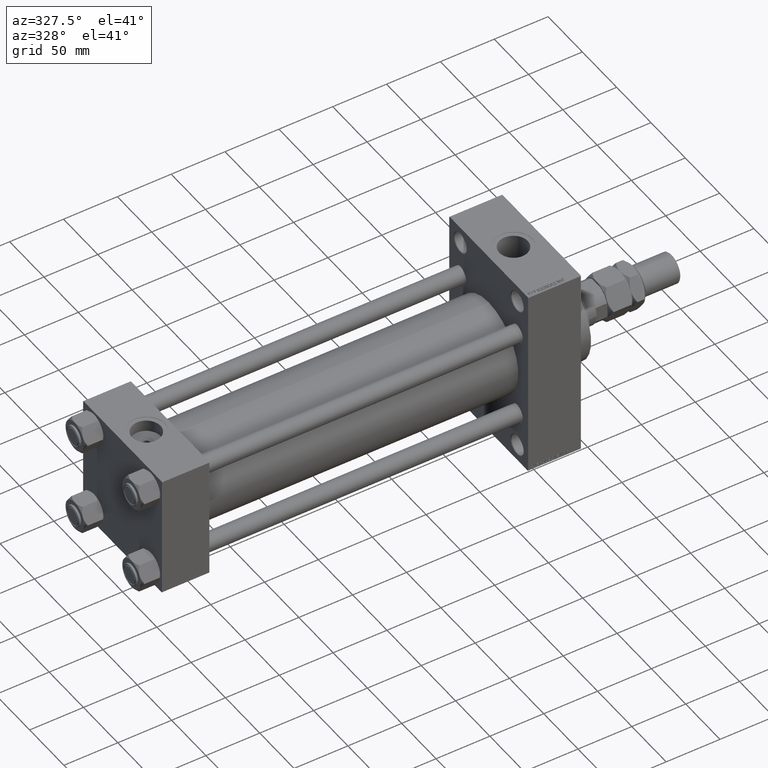
[diagram: clean part render]
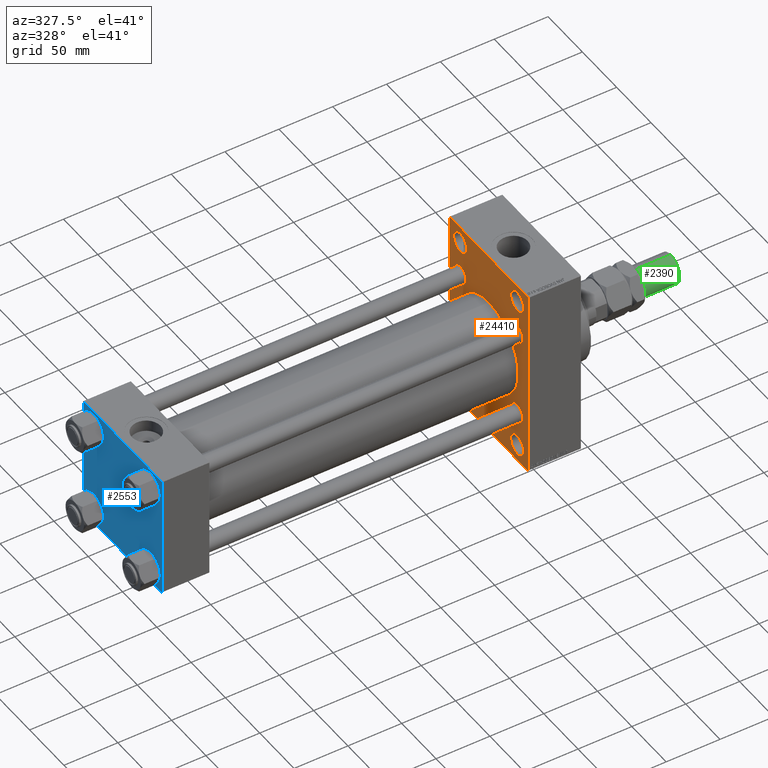
[diagram: same view with three faces highlighted in distinct colors, each labeled with its STEP entity id]
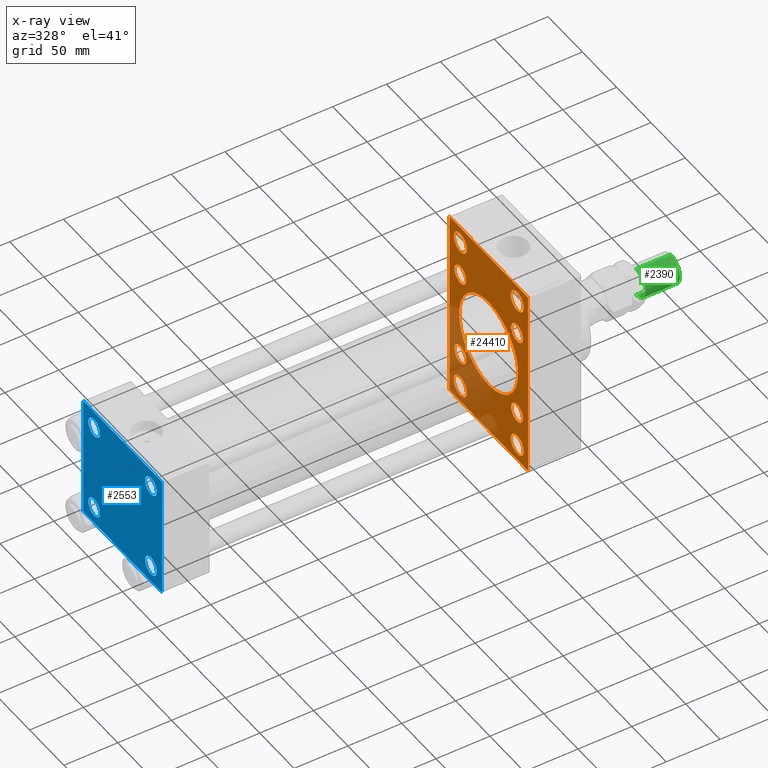
[diagram: x-ray of the same camera — body ghosted, the three highlighted faces saturated]
A machine part, auxiliary view with three faces highlighted in distinct colors.
The next image is the same camera in x-ray (body ghosted, the three faces saturated) — at least one of them is partly hidden behind the body in this view.
Their STEP definitions:

[orange] entity #24410 — the highlighted planar face has unit normal (-1, 0, 0).
#315 = ORIENTED_EDGE ( 'NONE', *, *, #41052, .T. ) ;
#408 = AXIS2_PLACEMENT_3D ( 'NONE', #17367, #4904, #33254 ) ;
#651 = VERTEX_POINT ( 'NONE', #7323 ) ;
#840 = VERTEX_POINT ( 'NONE', #1810 ) ;
#983 = CARTESIAN_POINT ( 'NONE',  ( 339.9999999999999432, -41.49999999999999289, -74.49999999999998579 ) ) ;
#1042 = CARTESIAN_POINT ( 'NONE',  ( 339.9999999999999432, -41.49999999999999289, 74.50000000000001421 ) ) ;
#1144 = EDGE_CURVE ( 'NONE', #21799, #36738, #3163, .T. ) ;
#1311 = CIRCLE ( 'NONE', #32882, 8.500000000000007105 ) ;
#1561 = CARTESIAN_POINT ( 'NONE',  ( 339.9999999999999432, -41.49999999999999289, -83.99999999999988631 ) ) ;
#1632 = EDGE_CURVE ( 'NONE', #5100, #37306, #25608, .T. ) ;
#1810 = CARTESIAN_POINT ( 'NONE',  ( 339.9999999999999432, -57.00000000000002132, -90.00000000000001421 ) ) ;
#1912 = FACE_BOUND ( 'NONE', #43462, .T. ) ;
#2055 = DIRECTION ( 'NONE',  ( 1.000000000000000000, -0.000000000000000000, 0.000000000000000000 ) ) ;
#2211 = CARTESIAN_POINT ( 'NONE',  ( 339.9999999999999432, -41.49999999999999289, 74.50000000000001421 ) ) ;
#2417 = DIRECTION ( 'NONE',  ( 0.000000000000000000, 0.7071067811865474617, -0.7071067811865474617 ) ) ;
#2575 = EDGE_LOOP ( 'NONE', ( #16671, #51236 ) ) ;
#2947 = PLANE ( 'NONE',  #12242 ) ;
#3163 = CIRCLE ( 'NONE', #4835, 8.500000000000007105 ) ;
#3443 = CARTESIAN_POINT ( 'NONE',  ( 339.9999999999999432, 41.50000000000000711, -74.50000000000000000 ) ) ;
#3858 = EDGE_CURVE ( 'NONE', #31831, #651, #36517, .T. ) ;
#4288 = CIRCLE ( 'NONE', #40816, 43.00000000000000000 ) ;
#4797 = FACE_BOUND ( 'NONE', #34760, .T. ) ;
#4829 = CARTESIAN_POINT ( 'NONE',  ( 339.9999999999999432, -2.602085213965210642E-15, 0.000000000000000000 ) ) ;
#4835 = AXIS2_PLACEMENT_3D ( 'NONE', #35647, #15348, #47848 ) ;
#4872 = AXIS2_PLACEMENT_3D ( 'NONE', #50624, #15007, #7466 ) ;
#4904 = DIRECTION ( 'NONE',  ( 1.000000000000000000, -0.000000000000000000, 0.000000000000000000 ) ) ;
#4953 = CARTESIAN_POINT ( 'NONE',  ( 339.9999999999999432, 41.34999999999999432, -32.84999999999999432 ) ) ;
#5059 = ORIENTED_EDGE ( 'NONE', *, *, #21238, .T. ) ;
#5100 = VERTEX_POINT ( 'NONE', #26092 ) ;
#5344 = ORIENTED_EDGE ( 'NONE', *, *, #22604, .T. ) ;
#5430 = ORIENTED_EDGE ( 'NONE', *, *, #44154, .T. ) ;
#5474 = CARTESIAN_POINT ( 'NONE',  ( 339.9999999999999432, -2.602085213965210642E-15, 43.00000000000000000 ) ) ;
#5701 = CARTESIAN_POINT ( 'NONE',  ( 339.9999999999999432, 41.50000000000000711, -74.50000000000000000 ) ) ;
#5956 = CARTESIAN_POINT ( 'NONE',  ( 339.9999999999999432, 41.50000000000000711, -64.99999999999998579 ) ) ;
#6000 = VERTEX_POINT ( 'NONE', #31303 ) ;
#6966 = VERTEX_POINT ( 'NONE', #23589 ) ;
#7213 = ORIENTED_EDGE ( 'NONE', *, *, #1144, .T. ) ;
#7323 = CARTESIAN_POINT ( 'NONE',  ( 339.9999999999999432, -41.49999999999999289, 84.00000000000001421 ) ) ;
#7364 = ORIENTED_EDGE ( 'NONE', *, *, #33793, .F. ) ;
#7466 = DIRECTION ( 'NONE',  ( 0.000000000000000000, 0.000000000000000000, 1.000000000000000000 ) ) ;
#7490 = VECTOR ( 'NONE', #43661, 1000.000000000000000 ) ;
#8221 = EDGE_CURVE ( 'NONE', #40246, #46325, #4288, .T. ) ;
#8388 = VERTEX_POINT ( 'NONE', #18858 ) ;
#8514 = CIRCLE ( 'NONE', #17668, 43.00000000000000000 ) ;
#8517 = CARTESIAN_POINT ( 'NONE',  ( 339.9999999999999432, 41.50000000000000711, 84.00000000000001421 ) ) ;
#8555 = LINE ( 'NONE', #24411, #27296 ) ;
#8607 = DIRECTION ( 'NONE',  ( 0.000000000000000000, 0.000000000000000000, 1.000000000000000000 ) ) ;
#8952 = EDGE_LOOP ( 'NONE', ( #22054, #315 ) ) ;
#9334 = VERTEX_POINT ( 'NONE', #27245 ) ;
#9963 = VECTOR ( 'NONE', #28953, 1000.000000000000000 ) ;
#9975 = DIRECTION ( 'NONE',  ( 0.000000000000000000, 0.000000000000000000, 1.000000000000000000 ) ) ;
#9986 = CARTESIAN_POINT ( 'NONE',  ( 339.9999999999999432, -41.34999999999998721, 41.35000000000000853 ) ) ;
#10019 = DIRECTION ( 'NONE',  ( 1.000000000000000000, -0.000000000000000000, 0.000000000000000000 ) ) ;
#10283 = DIRECTION ( 'NONE',  ( 0.000000000000000000, 0.000000000000000000, 1.000000000000000000 ) ) ;
#10436 = EDGE_CURVE ( 'NONE', #46325, #40246, #8514, .T. ) ;
#11677 = CIRCLE ( 'NONE', #41594, 8.500000000000007105 ) ;
#11950 = CARTESIAN_POINT ( 'NONE',  ( 339.9999999999999432, -57.50000000000002132, 89.99999999999997158 ) ) ;
#12242 = AXIS2_PLACEMENT_3D ( 'NONE', #46382, #42743, #30279 ) ;
#12301 = CARTESIAN_POINT ( 'NONE',  ( 339.9999999999999432, 57.49999999999997158, 89.49999999999998579 ) ) ;
#12651 = CARTESIAN_POINT ( 'NONE',  ( 339.9999999999999432, -41.34999999999998721, 32.85000000000000142 ) ) ;
#12971 = EDGE_LOOP ( 'NONE', ( #19153, #20906 ) ) ;
#13093 = LINE ( 'NONE', #51040, #26018 ) ;
#13102 = FACE_BOUND ( 'NONE', #30379, .T. ) ;
#13213 = EDGE_CURVE ( 'NONE', #41520, #26228, #13093, .T. ) ;
#13585 = CARTESIAN_POINT ( 'NONE',  ( 339.9999999999999432, 56.99999999999997868, -90.00000000000000000 ) ) ;
#13684 = CIRCLE ( 'NONE', #408, 8.500000000000007105 ) ;
#14020 = DIRECTION ( 'NONE',  ( 0.000000000000000000, 0.000000000000000000, 1.000000000000000000 ) ) ;
#14136 = CARTESIAN_POINT ( 'NONE',  ( 339.9999999999999432, -41.34999999999998721, 41.35000000000000853 ) ) ;
#14624 = VERTEX_POINT ( 'NONE', #5956 ) ;
#14804 = VECTOR ( 'NONE', #15059, 1000.000000000000000 ) ;
#14914 = DIRECTION ( 'NONE',  ( 1.000000000000000000, -0.000000000000000000, 0.000000000000000000 ) ) ;
#15007 = DIRECTION ( 'NONE',  ( 1.000000000000000000, -0.000000000000000000, 0.000000000000000000 ) ) ;
#15059 = DIRECTION ( 'NONE',  ( -0.000000000000000000, 0.7071067811865524577, 0.7071067811865426878 ) ) ;
#15110 = CARTESIAN_POINT ( 'NONE',  ( 339.9999999999999432, -41.49999999999999289, 65.00000000000000000 ) ) ;
#15270 = LINE ( 'NONE', #38956, #15532 ) ;
#15348 = DIRECTION ( 'NONE',  ( 1.000000000000000000, -0.000000000000000000, 0.000000000000000000 ) ) ;
#15456 = EDGE_CURVE ( 'NONE', #36738, #21799, #13684, .T. ) ;
#15532 = VECTOR ( 'NONE', #31149, 1000.000000000000000 ) ;
#15617 = ORIENTED_EDGE ( 'NONE', *, *, #38902, .T. ) ;
#15852 = CARTESIAN_POINT ( 'NONE',  ( 339.9999999999999432, 41.50000000000000711, 65.00000000000000000 ) ) ;
#16671 = ORIENTED_EDGE ( 'NONE', *, *, #21432, .T. ) ;
#16896 = CARTESIAN_POINT ( 'NONE',  ( 339.9999999999999432, 41.34999999999999432, 32.84999999999999432 ) ) ;
#17151 = DIRECTION ( 'NONE',  ( 1.000000000000000000, -0.000000000000000000, 0.000000000000000000 ) ) ;
#17234 = CIRCLE ( 'NONE', #38055, 9.500000000000008882 ) ;
#17367 = CARTESIAN_POINT ( 'NONE',  ( 339.9999999999999432, 41.34999999999999432, -41.35000000000000142 ) ) ;
#17616 = DIRECTION ( 'NONE',  ( 0.000000000000000000, 0.000000000000000000, 1.000000000000000000 ) ) ;
#17668 = AXIS2_PLACEMENT_3D ( 'NONE', #4829, #37333, #33430 ) ;
#17918 = CIRCLE ( 'NONE', #46993, 9.500000000000008882 ) ;
#18012 = LINE ( 'NONE', #48704, #9963 ) ;
#18025 = CARTESIAN_POINT ( 'NONE',  ( 339.9999999999999432, 41.34999999999999432, 41.35000000000000142 ) ) ;
#18126 = CARTESIAN_POINT ( 'NONE',  ( 339.9999999999999432, 41.34999999999999432, -49.85000000000001563 ) ) ;
#18311 = DIRECTION ( 'NONE',  ( 0.000000000000000000, 0.000000000000000000, 1.000000000000000000 ) ) ;
#18741 = ORIENTED_EDGE ( 'NONE', *, *, #23963, .T. ) ;
#18858 = CARTESIAN_POINT ( 'NONE',  ( 339.9999999999999432, 41.50000000000000711, -84.00000000000000000 ) ) ;
#18958 = CARTESIAN_POINT ( 'NONE',  ( 339.9999999999999432, -73.49999999999960210, 73.50000000000062528 ) ) ;
#19153 = ORIENTED_EDGE ( 'NONE', *, *, #1632, .T. ) ;
#19778 = VERTEX_POINT ( 'NONE', #49677 ) ;
#19814 = AXIS2_PLACEMENT_3D ( 'NONE', #3443, #22933, #47386 ) ;
#19936 = VERTEX_POINT ( 'NONE', #15852 ) ;
#19960 = DIRECTION ( 'NONE',  ( 0.000000000000000000, 0.000000000000000000, 1.000000000000000000 ) ) ;
#20651 = FACE_BOUND ( 'NONE', #50774, .T. ) ;
#20749 = DIRECTION ( 'NONE',  ( 0.000000000000000000, -1.000000000000000000, -1.206764157201257045E-16 ) ) ;
#20906 = ORIENTED_EDGE ( 'NONE', *, *, #45590, .T. ) ;
#21222 = VERTEX_POINT ( 'NONE', #16896 ) ;
#21238 = EDGE_CURVE ( 'NONE', #14624, #8388, #17918, .T. ) ;
#21419 = DIRECTION ( 'NONE',  ( 1.000000000000000000, -0.000000000000000000, 0.000000000000000000 ) ) ;
#21432 = EDGE_CURVE ( 'NONE', #19778, #37159, #1311, .T. ) ;
#21598 = VECTOR ( 'NONE', #27050, 1000.000000000000000 ) ;
#21799 = VERTEX_POINT ( 'NONE', #18126 ) ;
#22054 = ORIENTED_EDGE ( 'NONE', *, *, #25633, .T. ) ;
#22271 = ORIENTED_EDGE ( 'NONE', *, *, #37235, .T. ) ;
#22604 = EDGE_CURVE ( 'NONE', #6000, #50864, #32111, .T. ) ;
#22933 = DIRECTION ( 'NONE',  ( 1.000000000000000000, -0.000000000000000000, 0.000000000000000000 ) ) ;
#23251 = VERTEX_POINT ( 'NONE', #13585 ) ;
#23589 = CARTESIAN_POINT ( 'NONE',  ( 339.9999999999999432, -57.50000000000002132, -89.50000000000002842 ) ) ;
#23963 = EDGE_CURVE ( 'NONE', #26846, #21222, #40461, .T. ) ;
#24410 = ADVANCED_FACE ( 'NONE', ( #13102, #41451, #1912, #28719, #29755, #4797, #20651, #30024, #41721, #30796 ), #2947, .T. ) ;
#24411 = CARTESIAN_POINT ( 'NONE',  ( 339.9999999999999432, 57.49999999999997868, -90.00000000000000000 ) ) ;
#24480 = EDGE_LOOP ( 'NONE', ( #44214, #47000, #7364, #43503, #43451, #51174, #5430, #22271 ) ) ;
#24584 = CARTESIAN_POINT ( 'NONE',  ( 339.9999999999999432, 41.34999999999999432, 49.85000000000001563 ) ) ;
#25019 = DIRECTION ( 'NONE',  ( 0.000000000000000000, -0.7071067811865965336, 0.7071067811864985009 ) ) ;
#25239 = CARTESIAN_POINT ( 'NONE',  ( 339.9999999999999432, 56.99999999999997158, 89.99999999999998579 ) ) ;
#25608 = CIRCLE ( 'NONE', #51389, 8.500000000000007105 ) ;
#25633 = EDGE_CURVE ( 'NONE', #43030, #19936, #17234, .T. ) ;
#26018 = VECTOR ( 'NONE', #2417, 1000.000000000000114 ) ;
#26092 = CARTESIAN_POINT ( 'NONE',  ( 339.9999999999999432, -41.34999999999998721, 49.85000000000002274 ) ) ;
#26193 = ORIENTED_EDGE ( 'NONE', *, *, #3858, .T. ) ;
#26228 = VERTEX_POINT ( 'NONE', #12301 ) ;
#26289 = VERTEX_POINT ( 'NONE', #29202 ) ;
#26846 = VERTEX_POINT ( 'NONE', #24584 ) ;
#27050 = DIRECTION ( 'NONE',  ( 0.000000000000000000, 3.854941057726238467E-17, -1.000000000000000000 ) ) ;
#27245 = CARTESIAN_POINT ( 'NONE',  ( 339.9999999999999432, 57.49999999999997868, -89.49999999999995737 ) ) ;
#27296 = VECTOR ( 'NONE', #20749, 1000.000000000000000 ) ;
#27314 = LINE ( 'NONE', #28080, #21598 ) ;
#28080 = CARTESIAN_POINT ( 'NONE',  ( 339.9999999999999432, 57.49999999999997158, 89.99999999999998579 ) ) ;
#28315 = EDGE_CURVE ( 'NONE', #8388, #14624, #42245, .T. ) ;
#28672 = CARTESIAN_POINT ( 'NONE',  ( 339.9999999999999432, -73.49999999999603517, -73.50000000000625278 ) ) ;
#28719 = FACE_BOUND ( 'NONE', #8952, .T. ) ;
#28737 = ORIENTED_EDGE ( 'NONE', *, *, #10436, .T. ) ;
#28863 = CARTESIAN_POINT ( 'NONE',  ( 339.9999999999999432, 41.50000000000000711, 74.50000000000001421 ) ) ;
#28864 = DIRECTION ( 'NONE',  ( 1.000000000000000000, -0.000000000000000000, 0.000000000000000000 ) ) ;
#28953 = DIRECTION ( 'NONE',  ( 0.000000000000000000, -1.000000000000000000, -1.206764157201257291E-16 ) ) ;
#28966 = CIRCLE ( 'NONE', #4872, 9.500000000000008882 ) ;
#29133 = DIRECTION ( 'NONE',  ( 0.000000000000000000, 0.000000000000000000, 1.000000000000000000 ) ) ;
#29152 = EDGE_CURVE ( 'NONE', #21222, #26846, #38167, .T. ) ;
#29202 = CARTESIAN_POINT ( 'NONE',  ( 339.9999999999999432, -57.00000000000007105, 89.99999999999997158 ) ) ;
#29755 = FACE_BOUND ( 'NONE', #12971, .T. ) ;
#30024 = FACE_BOUND ( 'NONE', #2575, .T. ) ;
#30260 = DIRECTION ( 'NONE',  ( 0.000000000000000000, 0.000000000000000000, 1.000000000000000000 ) ) ;
#30279 = DIRECTION ( 'NONE',  ( -0.000000000000000000, 0.000000000000000000, 1.000000000000000000 ) ) ;
#30338 = EDGE_LOOP ( 'NONE', ( #28737, #33703 ) ) ;
#30379 = EDGE_LOOP ( 'NONE', ( #41137, #26193 ) ) ;
#30796 = FACE_OUTER_BOUND ( 'NONE', #24480, .T. ) ;
#30807 = DIRECTION ( 'NONE',  ( 0.000000000000000000, 0.000000000000000000, 1.000000000000000000 ) ) ;
#31149 = DIRECTION ( 'NONE',  ( -0.000000000000000000, -0.7071067811865573427, -0.7071067811865378028 ) ) ;
#31303 = CARTESIAN_POINT ( 'NONE',  ( 339.9999999999999432, -41.49999999999999289, -65.00000000000008527 ) ) ;
#31604 = DIRECTION ( 'NONE',  ( 0.000000000000000000, 0.000000000000000000, 1.000000000000000000 ) ) ;
#31716 = CARTESIAN_POINT ( 'NONE',  ( 339.9999999999999432, 2.663896022368408223E-15, -43.00000000000000000 ) ) ;
#31831 = VERTEX_POINT ( 'NONE', #15110 ) ;
#32111 = CIRCLE ( 'NONE', #34598, 9.499999999999896971 ) ;
#32323 = LINE ( 'NONE', #28672, #37357 ) ;
#32397 = AXIS2_PLACEMENT_3D ( 'NONE', #40251, #47533, #19960 ) ;
#32882 = AXIS2_PLACEMENT_3D ( 'NONE', #37706, #2055, #14020 ) ;
#33254 = DIRECTION ( 'NONE',  ( 0.000000000000000000, 0.000000000000000000, 1.000000000000000000 ) ) ;
#33430 = DIRECTION ( 'NONE',  ( 0.000000000000000000, 0.000000000000000000, -1.000000000000000000 ) ) ;
#33703 = ORIENTED_EDGE ( 'NONE', *, *, #8221, .T. ) ;
#33748 = CARTESIAN_POINT ( 'NONE',  ( 339.9999999999999432, -41.34999999999998721, -49.85000000000002274 ) ) ;
#33793 = EDGE_CURVE ( 'NONE', #43761, #6966, #47825, .T. ) ;
#34135 = EDGE_CURVE ( 'NONE', #41520, #26289, #18012, .T. ) ;
#34598 = AXIS2_PLACEMENT_3D ( 'NONE', #983, #36891, #17616 ) ;
#34760 = EDGE_LOOP ( 'NONE', ( #18741, #36537 ) ) ;
#34819 = AXIS2_PLACEMENT_3D ( 'NONE', #18025, #50262, #30260 ) ;
#35509 = DIRECTION ( 'NONE',  ( 0.000000000000000000, 0.000000000000000000, -1.000000000000000000 ) ) ;
#35558 = AXIS2_PLACEMENT_3D ( 'NONE', #43007, #14914, #30807 ) ;
#35647 = CARTESIAN_POINT ( 'NONE',  ( 339.9999999999999432, 41.34999999999999432, -41.35000000000000142 ) ) ;
#35824 = EDGE_CURVE ( 'NONE', #651, #31831, #44902, .T. ) ;
#36370 = CIRCLE ( 'NONE', #35558, 9.499999999999896971 ) ;
#36517 = CIRCLE ( 'NONE', #39873, 9.500000000000008882 ) ;
#36537 = ORIENTED_EDGE ( 'NONE', *, *, #29152, .T. ) ;
#36738 = VERTEX_POINT ( 'NONE', #4953 ) ;
#36891 = DIRECTION ( 'NONE',  ( 1.000000000000000000, -0.000000000000000000, 0.000000000000000000 ) ) ;
#37159 = VERTEX_POINT ( 'NONE', #33748 ) ;
#37235 = EDGE_CURVE ( 'NONE', #9334, #23251, #15270, .T. ) ;
#37306 = VERTEX_POINT ( 'NONE', #12651 ) ;
#37333 = DIRECTION ( 'NONE',  ( 1.000000000000000000, 0.000000000000000000, 0.000000000000000000 ) ) ;
#37357 = VECTOR ( 'NONE', #25019, 1000.000000000000114 ) ;
#37706 = CARTESIAN_POINT ( 'NONE',  ( 339.9999999999999432, -41.34999999999998721, -41.35000000000000853 ) ) ;
#37809 = CARTESIAN_POINT ( 'NONE',  ( 339.9999999999999432, -57.50000000000002132, 89.50000000000002842 ) ) ;
#38055 = AXIS2_PLACEMENT_3D ( 'NONE', #28863, #41090, #48876 ) ;
#38167 = CIRCLE ( 'NONE', #34819, 8.500000000000007105 ) ;
#38741 = LINE ( 'NONE', #18958, #14804 ) ;
#38902 = EDGE_CURVE ( 'NONE', #50864, #6000, #36370, .T. ) ;
#38956 = CARTESIAN_POINT ( 'NONE',  ( 339.9999999999999432, 73.49999999999920419, -73.50000000000125056 ) ) ;
#39873 = AXIS2_PLACEMENT_3D ( 'NONE', #2211, #45912, #10283 ) ;
#40159 = EDGE_CURVE ( 'NONE', #43761, #26289, #38741, .T. ) ;
#40246 = VERTEX_POINT ( 'NONE', #31716 ) ;
#40251 = CARTESIAN_POINT ( 'NONE',  ( 339.9999999999999432, -41.34999999999998721, -41.35000000000000853 ) ) ;
#40461 = CIRCLE ( 'NONE', #44602, 8.500000000000007105 ) ;
#40749 = EDGE_LOOP ( 'NONE', ( #5344, #15617 ) ) ;
#40816 = AXIS2_PLACEMENT_3D ( 'NONE', #51095, #42785, #35509 ) ;
#40830 = EDGE_CURVE ( 'NONE', #23251, #840, #8555, .T. ) ;
#41052 = EDGE_CURVE ( 'NONE', #19936, #43030, #28966, .T. ) ;
#41090 = DIRECTION ( 'NONE',  ( 1.000000000000000000, -0.000000000000000000, 0.000000000000000000 ) ) ;
#41137 = ORIENTED_EDGE ( 'NONE', *, *, #35824, .T. ) ;
#41451 = FACE_BOUND ( 'NONE', #40749, .T. ) ;
#41520 = VERTEX_POINT ( 'NONE', #25239 ) ;
#41594 = AXIS2_PLACEMENT_3D ( 'NONE', #9986, #21419, #18311 ) ;
#41721 = FACE_BOUND ( 'NONE', #30338, .T. ) ;
#42245 = CIRCLE ( 'NONE', #19814, 9.500000000000008882 ) ;
#42743 = DIRECTION ( 'NONE',  ( -1.000000000000000000, 0.000000000000000000, -0.000000000000000000 ) ) ;
#42785 = DIRECTION ( 'NONE',  ( 1.000000000000000000, 0.000000000000000000, 0.000000000000000000 ) ) ;
#43007 = CARTESIAN_POINT ( 'NONE',  ( 339.9999999999999432, -41.49999999999999289, -74.49999999999998579 ) ) ;
#43030 = VERTEX_POINT ( 'NONE', #8517 ) ;
#43083 = EDGE_CURVE ( 'NONE', #37159, #19778, #47311, .T. ) ;
#43282 = AXIS2_PLACEMENT_3D ( 'NONE', #1042, #17151, #8607 ) ;
#43451 = ORIENTED_EDGE ( 'NONE', *, *, #34135, .F. ) ;
#43462 = EDGE_LOOP ( 'NONE', ( #5059, #47552 ) ) ;
#43503 = ORIENTED_EDGE ( 'NONE', *, *, #40159, .T. ) ;
#43661 = DIRECTION ( 'NONE',  ( 0.000000000000000000, 0.000000000000000000, -1.000000000000000000 ) ) ;
#43761 = VERTEX_POINT ( 'NONE', #37809 ) ;
#44154 = EDGE_CURVE ( 'NONE', #26228, #9334, #27314, .T. ) ;
#44214 = ORIENTED_EDGE ( 'NONE', *, *, #40830, .T. ) ;
#44602 = AXIS2_PLACEMENT_3D ( 'NONE', #45645, #10019, #31604 ) ;
#44902 = CIRCLE ( 'NONE', #43282, 9.500000000000008882 ) ;
#45337 = DIRECTION ( 'NONE',  ( 1.000000000000000000, -0.000000000000000000, 0.000000000000000000 ) ) ;
#45590 = EDGE_CURVE ( 'NONE', #37306, #5100, #11677, .T. ) ;
#45645 = CARTESIAN_POINT ( 'NONE',  ( 339.9999999999999432, 41.34999999999999432, 41.35000000000000142 ) ) ;
#45912 = DIRECTION ( 'NONE',  ( 1.000000000000000000, -0.000000000000000000, 0.000000000000000000 ) ) ;
#45933 = EDGE_CURVE ( 'NONE', #840, #6966, #32323, .T. ) ;
#46058 = ORIENTED_EDGE ( 'NONE', *, *, #15456, .T. ) ;
#46325 = VERTEX_POINT ( 'NONE', #5474 ) ;
#46382 = CARTESIAN_POINT ( 'NONE',  ( 339.9999999999999432, 0.000000000000000000, 0.000000000000000000 ) ) ;
#46993 = AXIS2_PLACEMENT_3D ( 'NONE', #5701, #28864, #29133 ) ;
#47000 = ORIENTED_EDGE ( 'NONE', *, *, #45933, .T. ) ;
#47311 = CIRCLE ( 'NONE', #32397, 8.500000000000007105 ) ;
#47386 = DIRECTION ( 'NONE',  ( 0.000000000000000000, 0.000000000000000000, 1.000000000000000000 ) ) ;
#47533 = DIRECTION ( 'NONE',  ( 1.000000000000000000, -0.000000000000000000, 0.000000000000000000 ) ) ;
#47552 = ORIENTED_EDGE ( 'NONE', *, *, #28315, .T. ) ;
#47825 = LINE ( 'NONE', #11950, #7490 ) ;
#47848 = DIRECTION ( 'NONE',  ( 0.000000000000000000, 0.000000000000000000, 1.000000000000000000 ) ) ;
#48704 = CARTESIAN_POINT ( 'NONE',  ( 339.9999999999999432, 57.49999999999997158, 89.99999999999998579 ) ) ;
#48876 = DIRECTION ( 'NONE',  ( 0.000000000000000000, 0.000000000000000000, 1.000000000000000000 ) ) ;
#49677 = CARTESIAN_POINT ( 'NONE',  ( 339.9999999999999432, -41.34999999999998721, -32.85000000000000142 ) ) ;
#50262 = DIRECTION ( 'NONE',  ( 1.000000000000000000, -0.000000000000000000, 0.000000000000000000 ) ) ;
#50624 = CARTESIAN_POINT ( 'NONE',  ( 339.9999999999999432, 41.50000000000000711, 74.50000000000001421 ) ) ;
#50774 = EDGE_LOOP ( 'NONE', ( #46058, #7213 ) ) ;
#50864 = VERTEX_POINT ( 'NONE', #1561 ) ;
#51040 = CARTESIAN_POINT ( 'NONE',  ( 339.9999999999999432, 73.49999999999998579, 73.49999999999998579 ) ) ;
#51095 = CARTESIAN_POINT ( 'NONE',  ( 339.9999999999999432, -2.602085213965210642E-15, 0.000000000000000000 ) ) ;
#51174 = ORIENTED_EDGE ( 'NONE', *, *, #13213, .T. ) ;
#51236 = ORIENTED_EDGE ( 'NONE', *, *, #43083, .T. ) ;
#51389 = AXIS2_PLACEMENT_3D ( 'NONE', #14136, #45337, #9975 ) ;

[blue] entity #2553 — the highlighted planar face has unit normal (-1, 0, 0).
#45 = VECTOR ( 'NONE', #2889, 1000.000000000000000 ) ;
#1802 = VERTEX_POINT ( 'NONE', #19066 ) ;
#2220 = EDGE_CURVE ( 'NONE', #1802, #3543, #25448, .T. ) ;
#2376 = VECTOR ( 'NONE', #12980, 1000.000000000000114 ) ;
#2553 = ADVANCED_FACE ( 'NONE', ( #35593, #24383, #15554, #47024, #27259 ), #40264, .T. ) ;
#2659 = CARTESIAN_POINT ( 'NONE',  ( 0.000000000000000000, -57.50000000000000711, 57.49999999999999289 ) ) ;
#2757 = DIRECTION ( 'NONE',  ( 0.000000000000000000, 0.000000000000000000, 1.000000000000000000 ) ) ;
#2889 = DIRECTION ( 'NONE',  ( 0.000000000000000000, -1.000000000000000000, -1.206764157201257045E-16 ) ) ;
#2938 = DIRECTION ( 'NONE',  ( -0.000000000000000000, -0.7071067811865376918, -0.7071067811865573427 ) ) ;
#2965 = AXIS2_PLACEMENT_3D ( 'NONE', #6754, #22860, #22611 ) ;
#3543 = VERTEX_POINT ( 'NONE', #28494 ) ;
#3649 = CARTESIAN_POINT ( 'NONE',  ( 0.000000000000000000, 57.24999999999922551, 57.25000000000081712 ) ) ;
#3892 = CIRCLE ( 'NONE', #32961, 8.499999999999992895 ) ;
#5014 = ORIENTED_EDGE ( 'NONE', *, *, #49851, .T. ) ;
#5096 = CARTESIAN_POINT ( 'NONE',  ( 0.000000000000000000, -41.34999999999998721, -32.85000000000001563 ) ) ;
#5792 = CARTESIAN_POINT ( 'NONE',  ( 0.000000000000000000, -41.34999999999998721, 49.85000000000000853 ) ) ;
#5827 = CARTESIAN_POINT ( 'NONE',  ( 0.000000000000000000, -41.34999999999998721, 41.35000000000000853 ) ) ;
#6025 = CARTESIAN_POINT ( 'NONE',  ( 0.000000000000000000, 57.49999999999999289, -57.49999999999999289 ) ) ;
#6243 = EDGE_CURVE ( 'NONE', #15619, #1802, #30728, .T. ) ;
#6754 = CARTESIAN_POINT ( 'NONE',  ( 0.000000000000000000, 41.34999999999999432, 41.35000000000000142 ) ) ;
#7331 = CARTESIAN_POINT ( 'NONE',  ( 0.000000000000000000, -41.34999999999998721, 41.35000000000000853 ) ) ;
#7441 = VERTEX_POINT ( 'NONE', #5792 ) ;
#7554 = LINE ( 'NONE', #3649, #30920 ) ;
#7582 = ORIENTED_EDGE ( 'NONE', *, *, #23122, .T. ) ;
#9103 = EDGE_CURVE ( 'NONE', #15759, #9296, #7554, .T. ) ;
#9296 = VERTEX_POINT ( 'NONE', #19450 ) ;
#9618 = DIRECTION ( 'NONE',  ( 0.000000000000000000, 0.000000000000000000, 1.000000000000000000 ) ) ;
#10888 = EDGE_LOOP ( 'NONE', ( #24249, #41193 ) ) ;
#11510 = VERTEX_POINT ( 'NONE', #46161 ) ;
#11871 = CARTESIAN_POINT ( 'NONE',  ( 0.000000000000000000, -41.34999999999998721, -41.35000000000000853 ) ) ;
#12980 = DIRECTION ( 'NONE',  ( 0.000000000000000000, -0.7071067811865474617, 0.7071067811865474617 ) ) ;
#13245 = EDGE_CURVE ( 'NONE', #15413, #15619, #46374, .T. ) ;
#13776 = CARTESIAN_POINT ( 'NONE',  ( 0.000000000000000000, -41.34999999999998721, -49.85000000000000853 ) ) ;
#13961 = VECTOR ( 'NONE', #35168, 1000.000000000000000 ) ;
#14457 = VERTEX_POINT ( 'NONE', #22387 ) ;
#14550 = DIRECTION ( 'NONE',  ( 1.000000000000000000, -0.000000000000000000, 0.000000000000000000 ) ) ;
#15285 = LINE ( 'NONE', #38706, #28235 ) ;
#15413 = VERTEX_POINT ( 'NONE', #21266 ) ;
#15541 = DIRECTION ( 'NONE',  ( 0.000000000000000000, -1.000000000000000000, -1.206764157201257045E-16 ) ) ;
#15554 = FACE_BOUND ( 'NONE', #10888, .T. ) ;
#15601 = VECTOR ( 'NONE', #43524, 1000.000000000000114 ) ;
#15619 = VERTEX_POINT ( 'NONE', #39675 ) ;
#15690 = CARTESIAN_POINT ( 'NONE',  ( -0.000000000000000000, -57.25000000000081712, 57.24999999999922551 ) ) ;
#15759 = VERTEX_POINT ( 'NONE', #44827 ) ;
#17056 = CIRCLE ( 'NONE', #2965, 8.499999999999992895 ) ;
#17523 = ORIENTED_EDGE ( 'NONE', *, *, #36945, .T. ) ;
#18270 = EDGE_CURVE ( 'NONE', #32309, #42235, #17056, .T. ) ;
#18618 = ORIENTED_EDGE ( 'NONE', *, *, #2220, .T. ) ;
#18696 = EDGE_LOOP ( 'NONE', ( #37672, #45631, #25368, #18618, #43513, #27954, #34627, #39994 ) ) ;
#18945 = CIRCLE ( 'NONE', #40520, 8.499999999999992895 ) ;
#19060 = CARTESIAN_POINT ( 'NONE',  ( 0.000000000000000000, 57.25000000000081712, -57.24999999999922551 ) ) ;
#19066 = CARTESIAN_POINT ( 'NONE',  ( 0.000000000000000000, -57.00000000000000711, -57.50000000000000711 ) ) ;
#19450 = CARTESIAN_POINT ( 'NONE',  ( 0.000000000000000000, 57.49999999999999289, 57.00000000000003553 ) ) ;
#19545 = VERTEX_POINT ( 'NONE', #5096 ) ;
#20020 = DIRECTION ( 'NONE',  ( 0.000000000000000000, 0.7071067811865573427, -0.7071067811865376918 ) ) ;
#20185 = CARTESIAN_POINT ( 'NONE',  ( 0.000000000000000000, 41.34999999999999432, -32.85000000000000853 ) ) ;
#20477 = CIRCLE ( 'NONE', #49540, 8.499999999999992895 ) ;
#21010 = CARTESIAN_POINT ( 'NONE',  ( 0.000000000000000000, 41.34999999999999432, 41.35000000000000142 ) ) ;
#21266 = CARTESIAN_POINT ( 'NONE',  ( 0.000000000000000000, 57.49999999999999289, -57.00000000000000711 ) ) ;
#22131 = VERTEX_POINT ( 'NONE', #46146 ) ;
#22387 = CARTESIAN_POINT ( 'NONE',  ( 0.000000000000000000, -57.00000000000003553, 57.49999999999999289 ) ) ;
#22611 = DIRECTION ( 'NONE',  ( 0.000000000000000000, 0.000000000000000000, 1.000000000000000000 ) ) ;
#22860 = DIRECTION ( 'NONE',  ( 1.000000000000000000, -0.000000000000000000, 0.000000000000000000 ) ) ;
#23122 = EDGE_CURVE ( 'NONE', #50937, #19545, #20477, .T. ) ;
#24165 = EDGE_CURVE ( 'NONE', #35997, #11510, #3892, .T. ) ;
#24214 = AXIS2_PLACEMENT_3D ( 'NONE', #7331, #39846, #51267 ) ;
#24249 = ORIENTED_EDGE ( 'NONE', *, *, #24165, .T. ) ;
#24383 = FACE_BOUND ( 'NONE', #39303, .T. ) ;
#24650 = DIRECTION ( 'NONE',  ( 1.000000000000000000, -0.000000000000000000, 0.000000000000000000 ) ) ;
#25053 = VECTOR ( 'NONE', #45783, 1000.000000000000000 ) ;
#25368 = ORIENTED_EDGE ( 'NONE', *, *, #6243, .T. ) ;
#25448 = LINE ( 'NONE', #29628, #2376 ) ;
#26695 = DIRECTION ( 'NONE',  ( 0.000000000000000000, 0.000000000000000000, 1.000000000000000000 ) ) ;
#27259 = FACE_OUTER_BOUND ( 'NONE', #18696, .T. ) ;
#27661 = LINE ( 'NONE', #15690, #15601 ) ;
#27954 = ORIENTED_EDGE ( 'NONE', *, *, #38863, .T. ) ;
#28235 = VECTOR ( 'NONE', #15541, 1000.000000000000000 ) ;
#28326 = VERTEX_POINT ( 'NONE', #38820 ) ;
#28461 = CARTESIAN_POINT ( 'NONE',  ( 0.000000000000000000, 41.34999999999999432, 32.85000000000000853 ) ) ;
#28494 = CARTESIAN_POINT ( 'NONE',  ( 0.000000000000000000, -57.50000000000000711, -57.00000000000000711 ) ) ;
#28951 = DIRECTION ( 'NONE',  ( 1.000000000000000000, -0.000000000000000000, 0.000000000000000000 ) ) ;
#29628 = CARTESIAN_POINT ( 'NONE',  ( 0.000000000000000000, -57.25000000000000711, -57.25000000000000711 ) ) ;
#29932 = CARTESIAN_POINT ( 'NONE',  ( 0.000000000000000000, 57.49999999999999289, 57.50000000000000711 ) ) ;
#30728 = LINE ( 'NONE', #6025, #45 ) ;
#30920 = VECTOR ( 'NONE', #20020, 1000.000000000000114 ) ;
#31015 = LINE ( 'NONE', #2659, #13961 ) ;
#32220 = DIRECTION ( 'NONE',  ( 0.000000000000000000, 0.000000000000000000, 1.000000000000000000 ) ) ;
#32309 = VERTEX_POINT ( 'NONE', #40394 ) ;
#32850 = CARTESIAN_POINT ( 'NONE',  ( 0.000000000000000000, -41.34999999999998721, -41.35000000000000853 ) ) ;
#32961 = AXIS2_PLACEMENT_3D ( 'NONE', #34491, #50339, #2757 ) ;
#32977 = CIRCLE ( 'NONE', #41289, 8.499999999999992895 ) ;
#34173 = CIRCLE ( 'NONE', #24214, 8.499999999999992895 ) ;
#34491 = CARTESIAN_POINT ( 'NONE',  ( 0.000000000000000000, 41.34999999999999432, -41.35000000000000142 ) ) ;
#34627 = ORIENTED_EDGE ( 'NONE', *, *, #42856, .F. ) ;
#35168 = DIRECTION ( 'NONE',  ( 0.000000000000000000, 0.000000000000000000, -1.000000000000000000 ) ) ;
#35593 = FACE_BOUND ( 'NONE', #42048, .T. ) ;
#35997 = VERTEX_POINT ( 'NONE', #20185 ) ;
#36008 = ORIENTED_EDGE ( 'NONE', *, *, #38608, .T. ) ;
#36945 = EDGE_CURVE ( 'NONE', #42235, #32309, #32977, .T. ) ;
#37581 = DIRECTION ( 'NONE',  ( 0.000000000000000000, 0.000000000000000000, 1.000000000000000000 ) ) ;
#37672 = ORIENTED_EDGE ( 'NONE', *, *, #50942, .T. ) ;
#38608 = EDGE_CURVE ( 'NONE', #19545, #50937, #18945, .T. ) ;
#38706 = CARTESIAN_POINT ( 'NONE',  ( 0.000000000000000000, 57.49999999999999289, 57.50000000000000711 ) ) ;
#38728 = EDGE_CURVE ( 'NONE', #7441, #28326, #43008, .T. ) ;
#38820 = CARTESIAN_POINT ( 'NONE',  ( 0.000000000000000000, -41.34999999999998721, 32.85000000000001563 ) ) ;
#38863 = EDGE_CURVE ( 'NONE', #22131, #14457, #27661, .T. ) ;
#39303 = EDGE_LOOP ( 'NONE', ( #36008, #7582 ) ) ;
#39675 = CARTESIAN_POINT ( 'NONE',  ( 0.000000000000000000, 57.00000000000002132, -57.49999999999999289 ) ) ;
#39846 = DIRECTION ( 'NONE',  ( 1.000000000000000000, -0.000000000000000000, 0.000000000000000000 ) ) ;
#39994 = ORIENTED_EDGE ( 'NONE', *, *, #9103, .T. ) ;
#40264 = PLANE ( 'NONE',  #40634 ) ;
#40394 = CARTESIAN_POINT ( 'NONE',  ( 0.000000000000000000, 41.34999999999999432, 49.85000000000000142 ) ) ;
#40398 = EDGE_CURVE ( 'NONE', #22131, #3543, #31015, .T. ) ;
#40520 = AXIS2_PLACEMENT_3D ( 'NONE', #11871, #47489, #26695 ) ;
#40634 = AXIS2_PLACEMENT_3D ( 'NONE', #43130, #43388, #50929 ) ;
#40809 = CIRCLE ( 'NONE', #44149, 8.499999999999992895 ) ;
#41193 = ORIENTED_EDGE ( 'NONE', *, *, #50168, .T. ) ;
#41289 = AXIS2_PLACEMENT_3D ( 'NONE', #21010, #24650, #32220 ) ;
#42048 = EDGE_LOOP ( 'NONE', ( #50073, #5014 ) ) ;
#42071 = EDGE_LOOP ( 'NONE', ( #42365, #17523 ) ) ;
#42235 = VERTEX_POINT ( 'NONE', #28461 ) ;
#42365 = ORIENTED_EDGE ( 'NONE', *, *, #18270, .T. ) ;
#42856 = EDGE_CURVE ( 'NONE', #15759, #14457, #15285, .T. ) ;
#43008 = CIRCLE ( 'NONE', #51313, 8.499999999999992895 ) ;
#43130 = CARTESIAN_POINT ( 'NONE',  ( 0.000000000000000000, 0.000000000000000000, 0.000000000000000000 ) ) ;
#43388 = DIRECTION ( 'NONE',  ( -1.000000000000000000, 0.000000000000000000, -0.000000000000000000 ) ) ;
#43513 = ORIENTED_EDGE ( 'NONE', *, *, #40398, .F. ) ;
#43524 = DIRECTION ( 'NONE',  ( -0.000000000000000000, 0.7071067811865376918, 0.7071067811865573427 ) ) ;
#44149 = AXIS2_PLACEMENT_3D ( 'NONE', #49152, #14550, #9618 ) ;
#44827 = CARTESIAN_POINT ( 'NONE',  ( 0.000000000000000000, 57.00000000000000711, 57.50000000000000711 ) ) ;
#45173 = VECTOR ( 'NONE', #2938, 1000.000000000000114 ) ;
#45631 = ORIENTED_EDGE ( 'NONE', *, *, #13245, .T. ) ;
#45783 = DIRECTION ( 'NONE',  ( 0.000000000000000000, 0.000000000000000000, -1.000000000000000000 ) ) ;
#46137 = DIRECTION ( 'NONE',  ( 1.000000000000000000, -0.000000000000000000, 0.000000000000000000 ) ) ;
#46146 = CARTESIAN_POINT ( 'NONE',  ( 0.000000000000000000, -57.50000000000000711, 57.00000000000000711 ) ) ;
#46161 = CARTESIAN_POINT ( 'NONE',  ( 0.000000000000000000, 41.34999999999999432, -49.85000000000000142 ) ) ;
#46290 = LINE ( 'NONE', #29932, #25053 ) ;
#46374 = LINE ( 'NONE', #19060, #45173 ) ;
#47024 = FACE_BOUND ( 'NONE', #42071, .T. ) ;
#47489 = DIRECTION ( 'NONE',  ( 1.000000000000000000, -0.000000000000000000, 0.000000000000000000 ) ) ;
#48703 = DIRECTION ( 'NONE',  ( 0.000000000000000000, 0.000000000000000000, 1.000000000000000000 ) ) ;
#49152 = CARTESIAN_POINT ( 'NONE',  ( 0.000000000000000000, 41.34999999999999432, -41.35000000000000142 ) ) ;
#49540 = AXIS2_PLACEMENT_3D ( 'NONE', #32850, #28951, #48703 ) ;
#49851 = EDGE_CURVE ( 'NONE', #28326, #7441, #34173, .T. ) ;
#50073 = ORIENTED_EDGE ( 'NONE', *, *, #38728, .T. ) ;
#50168 = EDGE_CURVE ( 'NONE', #11510, #35997, #40809, .T. ) ;
#50339 = DIRECTION ( 'NONE',  ( 1.000000000000000000, -0.000000000000000000, 0.000000000000000000 ) ) ;
#50929 = DIRECTION ( 'NONE',  ( -0.000000000000000000, 0.000000000000000000, 1.000000000000000000 ) ) ;
#50937 = VERTEX_POINT ( 'NONE', #13776 ) ;
#50942 = EDGE_CURVE ( 'NONE', #9296, #15413, #46290, .T. ) ;
#51267 = DIRECTION ( 'NONE',  ( 0.000000000000000000, 0.000000000000000000, 1.000000000000000000 ) ) ;
#51313 = AXIS2_PLACEMENT_3D ( 'NONE', #5827, #46137, #37581 ) ;

[green] entity #2390 — the highlighted cylindrical surface (edge-blend (fillet) strip) has radius 13.5 mm, axis along (-1, -0, 0).
#459 = DIRECTION ( 'NONE',  ( 1.000000000000000000, 0.000000000000000000, 0.000000000000000000 ) ) ;
#712 = DIRECTION ( 'NONE',  ( -0.000000000000000000, -0.000000000000000000, 1.000000000000000000 ) ) ;
#767 = EDGE_CURVE ( 'NONE', #21938, #25085, #24706, .T. ) ;
#1111 = CARTESIAN_POINT ( 'NONE',  ( 13.50000000000000000, 1.653273178848926867E-15, 70.00000000000000000 ) ) ;
#2390 = ADVANCED_FACE ( 'NONE', ( #46775 ), #46004, .T. ) ;
#3080 = CARTESIAN_POINT ( 'NONE',  ( 0.000000000000000000, 0.000000000000000000, 70.00000000000000000 ) ) ;
#5121 = CARTESIAN_POINT ( 'NONE',  ( 13.50000000000000000, 1.653273178848926867E-15, 37.00000000000000000 ) ) ;
#5643 = VECTOR ( 'NONE', #12002, 1000.000000000000000 ) ;
#5966 = CARTESIAN_POINT ( 'NONE',  ( 13.50000000000000000, 1.653273178848926867E-15, 68.99999999999998579 ) ) ;
#7239 = ORIENTED_EDGE ( 'NONE', *, *, #36447, .F. ) ;
#8920 = LINE ( 'NONE', #1111, #29992 ) ;
#10428 = EDGE_LOOP ( 'NONE', ( #7239, #44716, #32554, #27810 ) ) ;
#11676 = AXIS2_PLACEMENT_3D ( 'NONE', #19980, #712, #459 ) ;
#12002 = DIRECTION ( 'NONE',  ( -0.000000000000000000, -0.000000000000000000, -1.000000000000000000 ) ) ;
#12576 = DIRECTION ( 'NONE',  ( -0.000000000000000000, -0.000000000000000000, -1.000000000000000000 ) ) ;
#14149 = CIRCLE ( 'NONE', #11676, 13.50000000000000000 ) ;
#15009 = DIRECTION ( 'NONE',  ( 1.000000000000000000, 0.000000000000000000, 0.000000000000000000 ) ) ;
#19980 = CARTESIAN_POINT ( 'NONE',  ( 0.000000000000000000, 0.000000000000000000, 37.00000000000000000 ) ) ;
#21426 = VERTEX_POINT ( 'NONE', #5966 ) ;
#21938 = VERTEX_POINT ( 'NONE', #35297 ) ;
#22986 = AXIS2_PLACEMENT_3D ( 'NONE', #47258, #50897, #15009 ) ;
#24706 = LINE ( 'NONE', #31520, #5643 ) ;
#25085 = VERTEX_POINT ( 'NONE', #25582 ) ;
#25500 = CIRCLE ( 'NONE', #22986, 13.50000000000000000 ) ;
#25582 = CARTESIAN_POINT ( 'NONE',  ( -13.50000000000000000, 0.000000000000000000, 37.00000000000000000 ) ) ;
#27810 = ORIENTED_EDGE ( 'NONE', *, *, #48632, .T. ) ;
#29992 = VECTOR ( 'NONE', #12576, 1000.000000000000000 ) ;
#31520 = CARTESIAN_POINT ( 'NONE',  ( -13.50000000000000000, 0.000000000000000000, 70.00000000000000000 ) ) ;
#32554 = ORIENTED_EDGE ( 'NONE', *, *, #767, .T. ) ;
#35297 = CARTESIAN_POINT ( 'NONE',  ( -13.50000000000000000, 0.000000000000000000, 68.99999999999998579 ) ) ;
#36447 = EDGE_CURVE ( 'NONE', #21426, #47925, #8920, .T. ) ;
#37226 = EDGE_CURVE ( 'NONE', #21426, #21938, #25500, .T. ) ;
#38468 = DIRECTION ( 'NONE',  ( -0.000000000000000000, -0.000000000000000000, -1.000000000000000000 ) ) ;
#40590 = AXIS2_PLACEMENT_3D ( 'NONE', #3080, #38468, #42870 ) ;
#42870 = DIRECTION ( 'NONE',  ( -1.000000000000000000, 0.000000000000000000, 0.000000000000000000 ) ) ;
#44716 = ORIENTED_EDGE ( 'NONE', *, *, #37226, .T. ) ;
#46004 = CYLINDRICAL_SURFACE ( 'NONE', #40590, 13.50000000000000000 ) ;
#46775 = FACE_OUTER_BOUND ( 'NONE', #10428, .T. ) ;
#47258 = CARTESIAN_POINT ( 'NONE',  ( 0.000000000000000000, 0.000000000000000000, 68.99999999999998579 ) ) ;
#47925 = VERTEX_POINT ( 'NONE', #5121 ) ;
#48632 = EDGE_CURVE ( 'NONE', #25085, #47925, #14149, .T. ) ;
#50897 = DIRECTION ( 'NONE',  ( 0.000000000000000000, 0.000000000000000000, -1.000000000000000000 ) ) ;